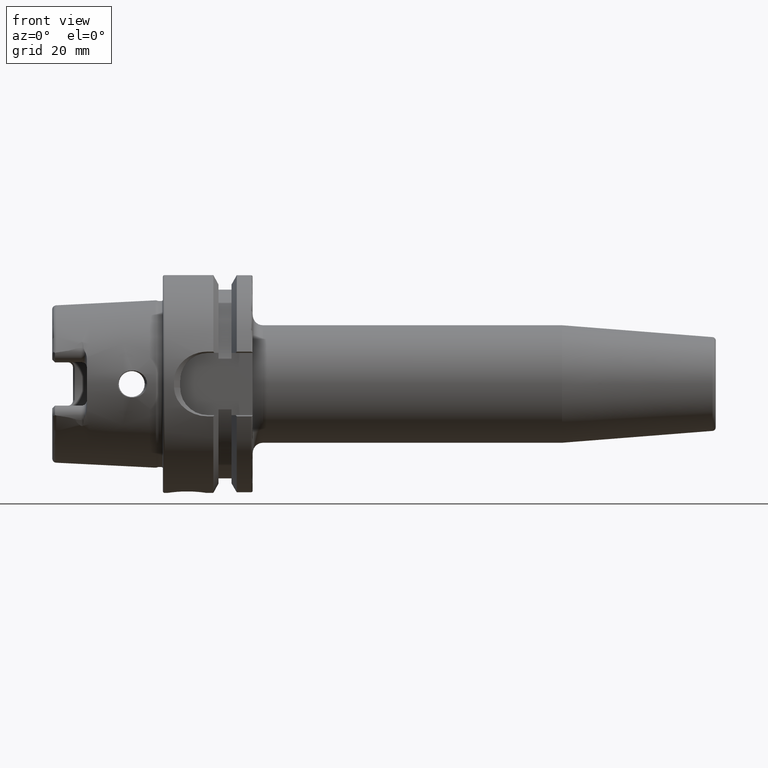
[diagram: clean part render]
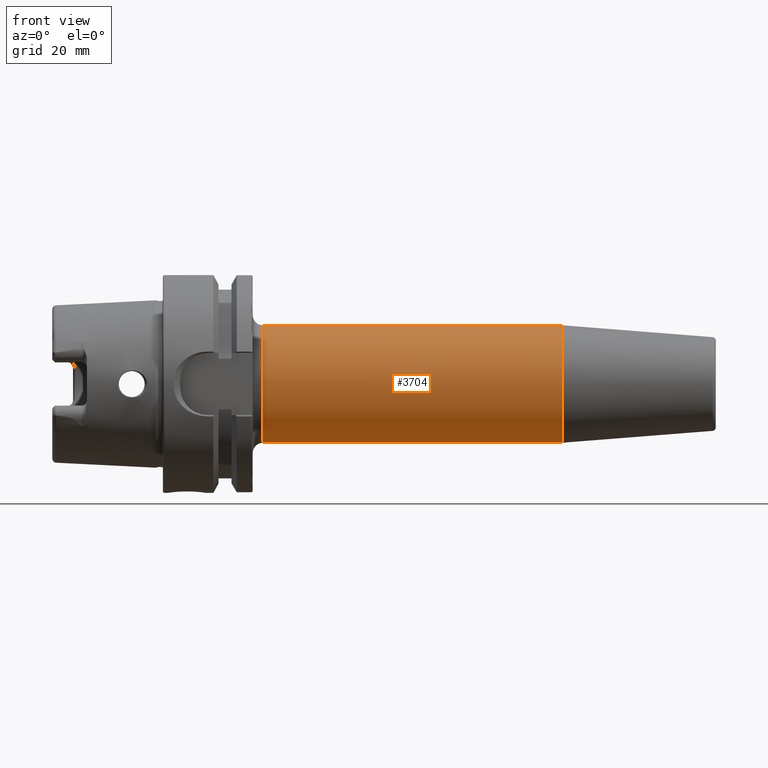
[diagram: same view with one face highlighted and labeled with its STEP entity id]
A machine part, front view. The second image highlights one B-rep face of the part: STEP entity #3704.
In plain terms, the highlighted cylindrical surface (partial cylindrical patch) has radius 17 mm, axis along (1, 0, 0).
Its self-contained STEP definition (entity closure, byte-faithful):
#607=DIRECTION('',(-1.E0,0.E0,0.E0));
#608=VECTOR('',#607,8.652828342339E1);
#609=CARTESIAN_POINT('',(1.155282834234E2,0.E0,-1.7E1));
#610=LINE('',#609,#608);
#611=DIRECTION('',(-1.E0,0.E0,0.E0));
#612=VECTOR('',#611,8.652828342339E1);
#613=CARTESIAN_POINT('',(1.155282834234E2,0.E0,1.7E1));
#614=LINE('',#613,#612);
#615=CARTESIAN_POINT('',(1.155282834234E2,0.E0,0.E0));
#616=DIRECTION('',(-1.E0,0.E0,0.E0));
#617=DIRECTION('',(0.E0,0.E0,-1.E0));
#618=AXIS2_PLACEMENT_3D('',#615,#616,#617);
#2478=CARTESIAN_POINT('',(2.9E1,0.E0,0.E0));
#2479=DIRECTION('',(-1.E0,0.E0,0.E0));
#2480=DIRECTION('',(0.E0,0.E0,-1.E0));
#2481=AXIS2_PLACEMENT_3D('',#2478,#2479,#2480);
#2958=CARTESIAN_POINT('',(1.155282834234E2,0.E0,-1.7E1));
#2959=VERTEX_POINT('',#2958);
#2960=CARTESIAN_POINT('',(2.9E1,0.E0,-1.7E1));
#2961=VERTEX_POINT('',#2960);
#2980=CARTESIAN_POINT('',(1.155282834234E2,0.E0,1.7E1));
#2981=VERTEX_POINT('',#2980);
#2982=CARTESIAN_POINT('',(2.9E1,0.E0,1.7E1));
#2983=VERTEX_POINT('',#2982);
#3690=CARTESIAN_POINT('',(1.93E1,0.E0,0.E0));
#3691=DIRECTION('',(1.E0,0.E0,0.E0));
#3692=DIRECTION('',(0.E0,0.E0,1.E0));
#3693=AXIS2_PLACEMENT_3D('',#3690,#3691,#3692);
#3694=CYLINDRICAL_SURFACE('',#3693,1.7E1);
#3696=ORIENTED_EDGE('',*,*,#3695,.T.);
#3698=ORIENTED_EDGE('',*,*,#3697,.T.);
#3700=ORIENTED_EDGE('',*,*,#3699,.F.);
#3701=ORIENTED_EDGE('',*,*,#3683,.F.);
#3702=EDGE_LOOP('',(#3696,#3698,#3700,#3701));
#3703=FACE_OUTER_BOUND('',#3702,.F.);
#3704=ADVANCED_FACE('',(#3703),#3694,.T.);
#619=CIRCLE('',#618,1.7E1);
#2482=CIRCLE('',#2481,1.7E1);
#3683=EDGE_CURVE('',#2959,#2981,#619,.T.);
#3695=EDGE_CURVE('',#2959,#2961,#610,.T.);
#3697=EDGE_CURVE('',#2961,#2983,#2482,.T.);
#3699=EDGE_CURVE('',#2981,#2983,#614,.T.);